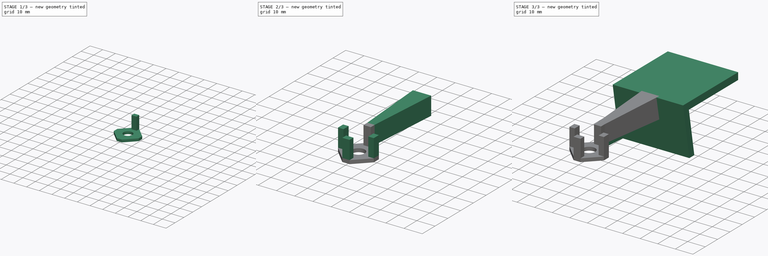
[diagram: build sequence overview — one tinted view per stage of 3, left to right]
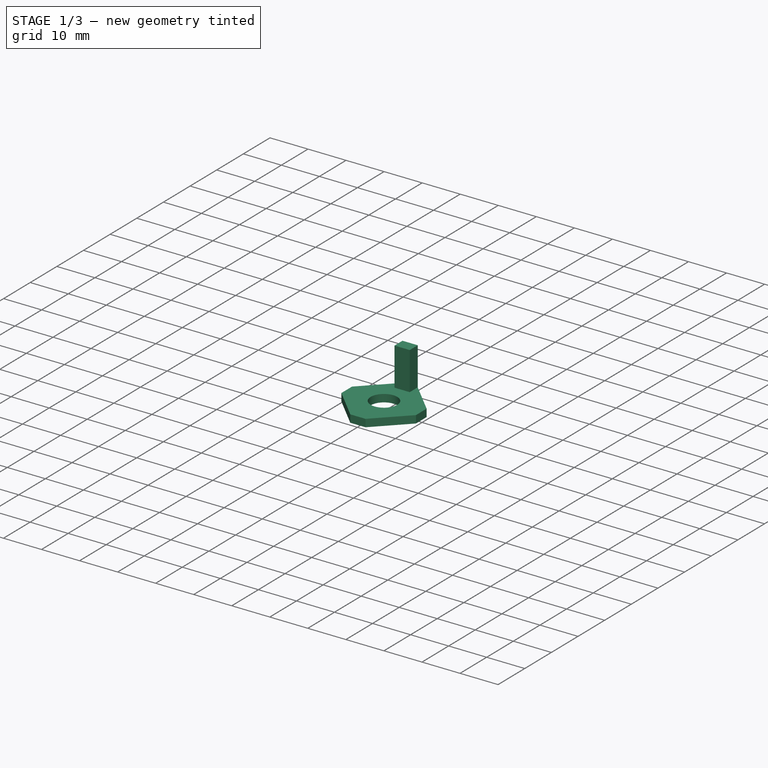
[diagram: stage 1 of 3 — iso view after this stage's code; geometry added in this stage tinted green]
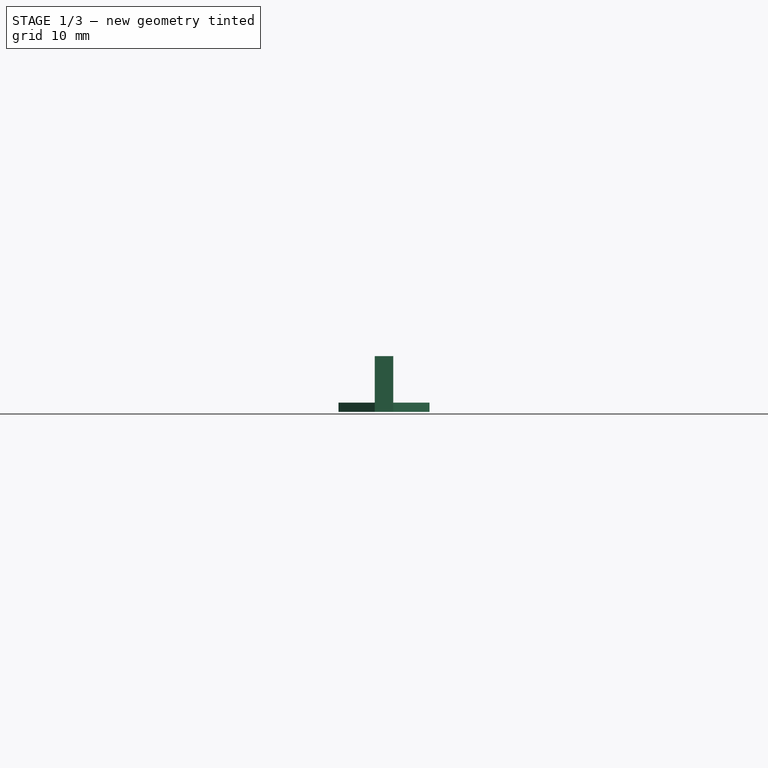
[diagram: stage 1 of 3 — front view after this stage's code; geometry added in this stage tinted green]
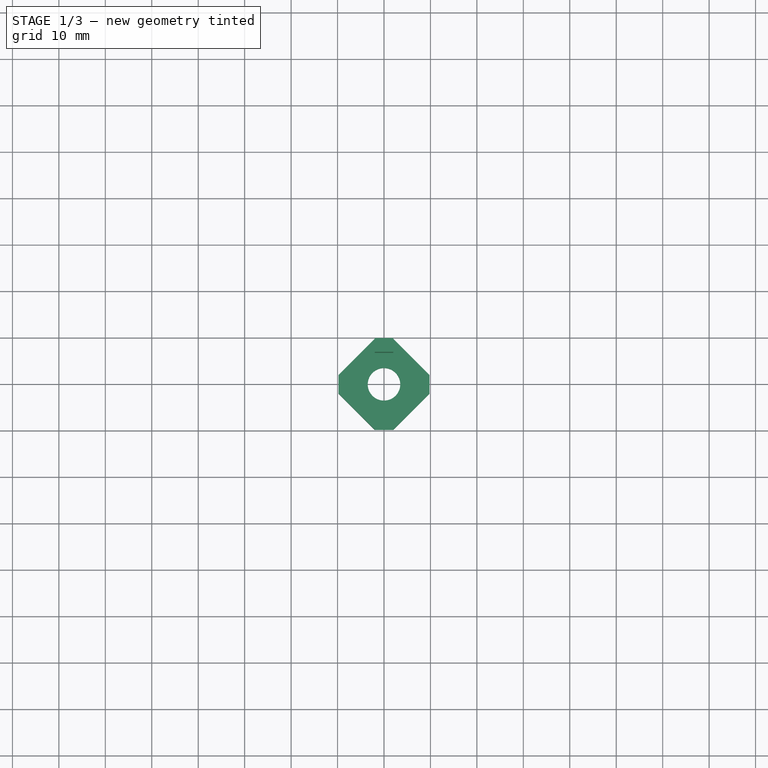
[diagram: stage 1 of 3 — top view after this stage's code; geometry added in this stage tinted green]
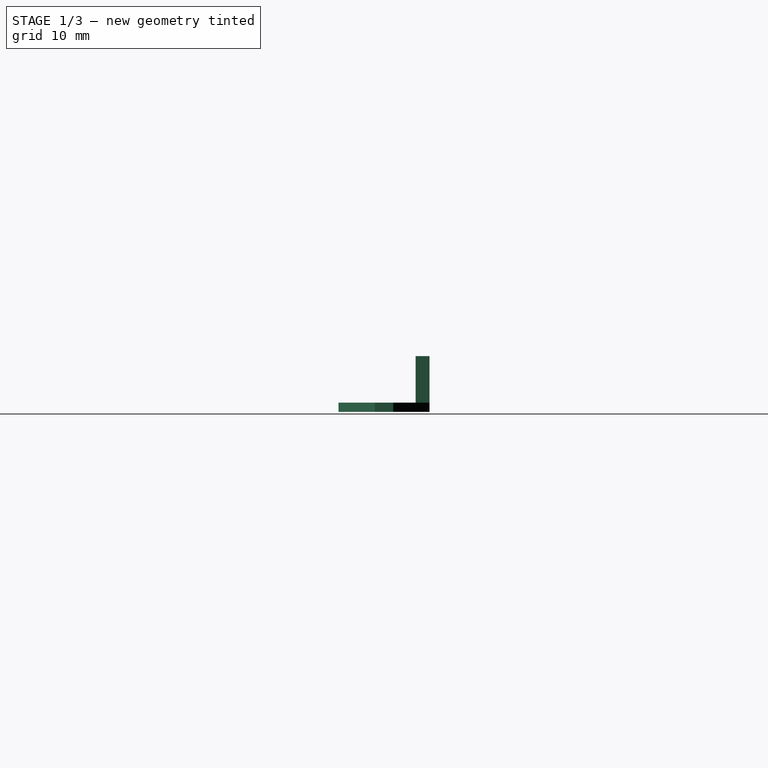
[diagram: stage 1 of 3 — right view after this stage's code; geometry added in this stage tinted green]
FCSTD DOCUMENT  (FreeCAD 0.21R33771 (Git))
Label: windowsill-for-panelmount-sma Rev D
License: All rights reserved
LicenseURL: https://en.wikipedia.org/wiki/All_rights_reserved
objects: PartDesign::Pad×5, Sketcher::SketchObject×4, PartDesign::PolarPattern×1, PartDesign::Body×1
note: 16 computed .brp shape members not serialized (recipe doc carries the construction recipe); baked Part::Feature solids carry a one-line shape summary decoded from their .brp

FEATURE [Sketcher::SketchObject] Sketch001  label="Fingers Profile"
  FullyConstrained = true
  MapMode = 5
  Support = -> [XY_Plane]
  sketch-geometry (6):
    g0: LineSegment StartX=-2 StartY=9.8 StartZ=0 EndX=2 EndY=9.8 EndZ=0
    g1: LineSegment StartX=2 StartY=9.8 StartZ=0 EndX=2 EndY=6.8 EndZ=0
    g2: LineSegment StartX=2 StartY=6.8 StartZ=0 EndX=-2 EndY=6.8 EndZ=0
    g3: LineSegment StartX=-2 StartY=6.8 StartZ=0 EndX=-2 EndY=9.8 EndZ=0
    g4: LineSegment StartX=-2 StartY=6.8 StartZ=0 EndX=4e-16 EndY=0 EndZ=0
    g5: LineSegment StartX=2 StartY=6.8 StartZ=0 EndX=4e-16 EndY=0 EndZ=0
  constraints (16):
    c: Coincident(g0,g1)
    c: Coincident(g1,g2)
    c: Coincident(g2,g3)
    c: Coincident(g3,g0)
    c: Horizontal(g0)
    c: Horizontal(g2)
    c: Vertical(g1)
    c: Vertical(g3)
    c: DistanceY(g1,g1) = 3
    c: DistanceX(g0,g0) = 4
    c: Coincident(g4,g2)
    c: Coincident(g4,g-1)
    c: Coincident(g5,g1)
    c: Coincident(g5,g4)
    c: Equal(g5,g4)
    c: DistanceY(g4,g1) = 6.8
FEATURE [Sketcher::SketchObject] Sketch  label="Base Profile"
  ExternalGeometry = -> [Sketch001]
  FullyConstrained = true
  MapMode = 5
  Support = -> [XY_Plane]
  sketch-geometry (13):
    g0: Circle CenterX=0 CenterY=0 CenterZ=0 NormalX=0 NormalY=0 NormalZ=1 AngleXU=0 Radius=3.5
    g1: LineSegment StartX=-9.8 StartY=2 StartZ=0 EndX=-9.8 EndY=-2 EndZ=0
    g2: LineSegment StartX=-2 StartY=-9.8 StartZ=0 EndX=2 EndY=-9.8 EndZ=0
    g3: LineSegment StartX=9.8 StartY=-2 StartZ=0 EndX=9.8 EndY=2 EndZ=0
    g4: LineSegment StartX=2 StartY=9.8 StartZ=0 EndX=-2 EndY=9.8 EndZ=0
    g5: LineSegment StartX=-2 StartY=9.8 StartZ=0 EndX=0 EndY=0 EndZ=0
    g6: LineSegment StartX=0 StartY=0 StartZ=0 EndX=2 EndY=-9.8 EndZ=0
    g7: LineSegment StartX=9.8 StartY=2 StartZ=0 EndX=0 EndY=0 EndZ=0
    g8: LineSegment StartX=0 StartY=0 StartZ=0 EndX=-9.8 EndY=-2 EndZ=0
    g9: LineSegment StartX=2 StartY=9.8 StartZ=0 EndX=9.8 EndY=2 EndZ=0
    g10: LineSegment StartX=9.8 StartY=-2 StartZ=0 EndX=2 EndY=-9.8 EndZ=0
    g11: LineSegment StartX=-9.8 StartY=-2 StartZ=0 EndX=-2 EndY=-9.8 EndZ=0
    g12: LineSegment StartX=-2 StartY=9.8 StartZ=0 EndX=-9.8 EndY=2 EndZ=0
  constraints (32):
    c: Coincident(g0,g-1)
    c: Diameter(g0) = 7
    c: Vertical(g1)
    c: Horizontal(g2)
    c: Vertical(g3)
    c: Horizontal(g3,g1)
    c: Horizontal(g3,g1)
    c: Vertical(g-3,g2)
    c: Vertical(g-3,g2)
    c: Equal(g4,g1)
    c: Coincident(g5,g0)
    c: Coincident(g6,g0)
    c: Coincident(g6,g2)
    c: Equal(g5,g6)
    c: Coincident(g7,g3)
    c: Coincident(g7,g0)
    c: Equal(g5,g7)
    c: Coincident(g4,g5)
    c: Coincident(g-3,g4)
    c: Coincident(g-3,g4)
    c: Angle(g7,g5) = 1.5708
    c: Coincident(g8,g0)
    c: Coincident(g8,g1)
    c: Equal(g8,g7)
    c: Coincident(g9,g4)
    c: Coincident(g9,g3)
    c: Coincident(g10,g3)
    c: Coincident(g10,g2)
    c: Coincident(g11,g1)
    c: Coincident(g11,g2)
    c: Coincident(g12,g4)
    c: Coincident(g12,g1)
FEATURE [PartDesign::Pad] Pad  label="Base"
  Direction = (0,0,1)
  Length = 2
  Length2 = 10
  Profile = -> Sketch
  ReferenceAxis = -> Sketch [N_Axis]
  Reversed = true
  Type = 0
FEATURE [PartDesign::Pad] Pad001  label="Fingers"
  BaseFeature = -> Pad
  Direction = (0,0,1)
  Length = 10
  Length2 = 10
  Profile = -> Sketch001
  ReferenceAxis = -> Sketch001 [N_Axis]
  Type = 0
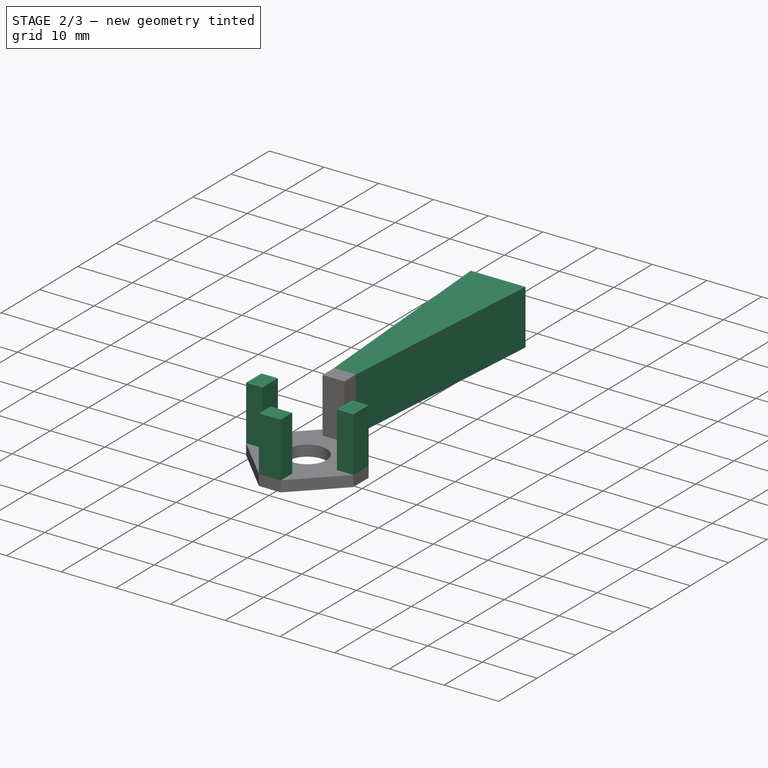
[diagram: stage 2 of 3 — iso view after this stage's code; geometry added in this stage tinted green]
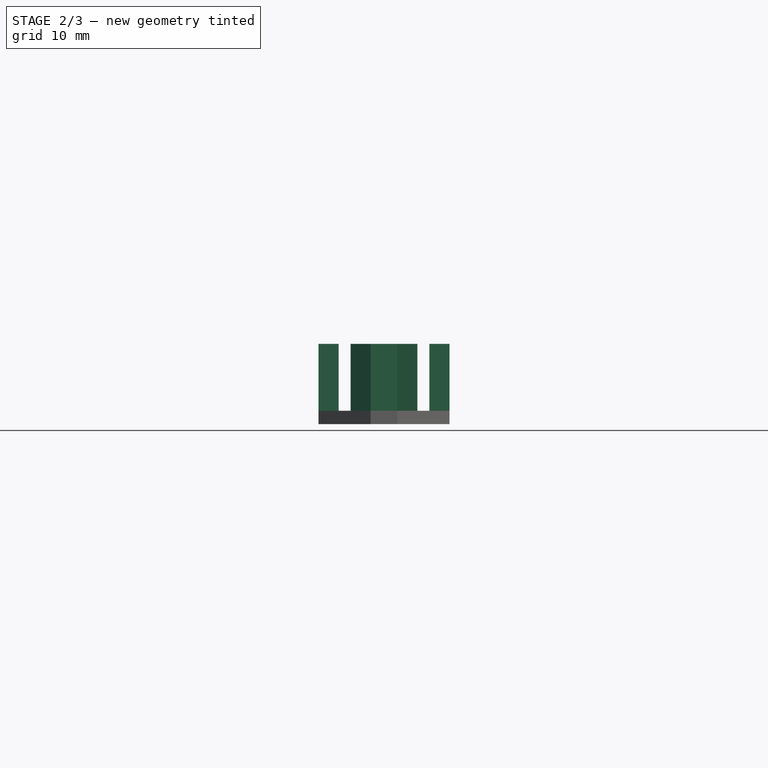
[diagram: stage 2 of 3 — front view after this stage's code; geometry added in this stage tinted green]
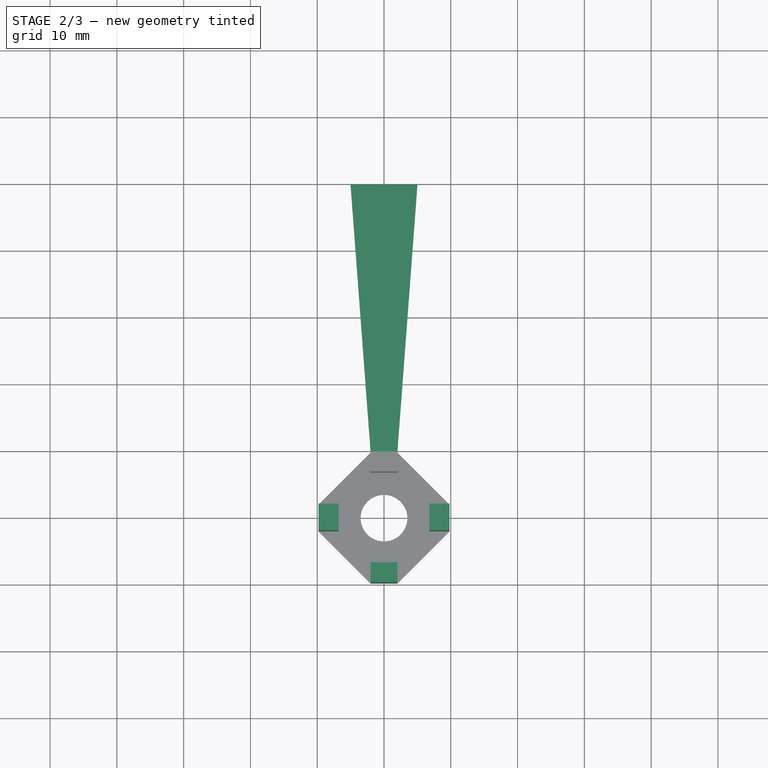
[diagram: stage 2 of 3 — top view after this stage's code; geometry added in this stage tinted green]
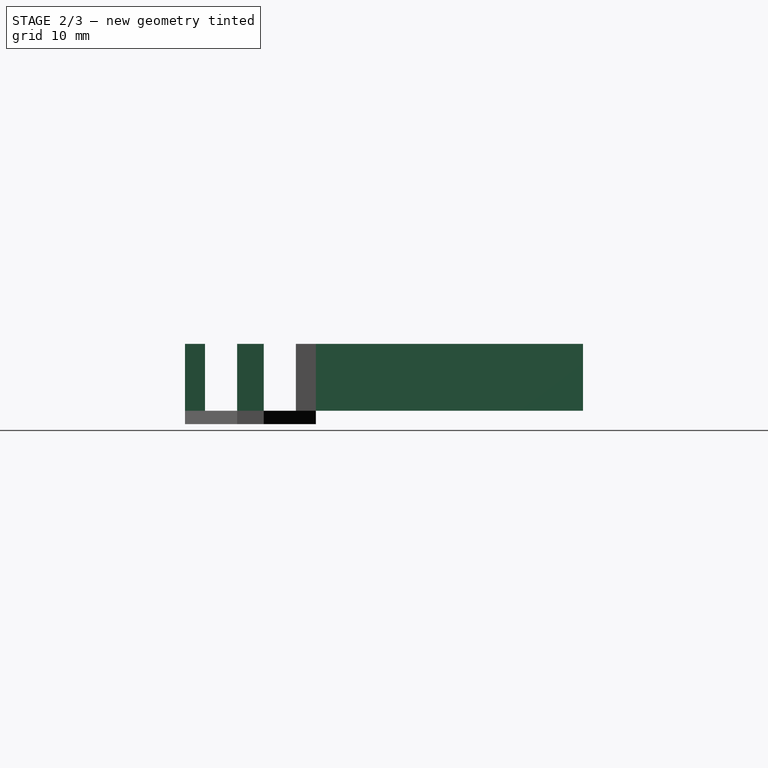
[diagram: stage 2 of 3 — right view after this stage's code; geometry added in this stage tinted green]
FEATURE [PartDesign::PolarPattern] PolarPattern
  Angle = 360
  Axis = -> Sketch001 [N_Axis]
  BaseFeature = -> Pad001
  Occurrences = 4
  Originals = -> [Pad001]
FEATURE [Sketcher::SketchObject] Sketch002  label="Antenna Extender Profile"
  ExternalGeometry = -> [Sketch001]
  FullyConstrained = true
  MapMode = 5
  Support = -> [XY_Plane]
  sketch-geometry (4):
    g0: LineSegment StartX=-2 StartY=9.8 StartZ=0 EndX=-5 EndY=49.8 EndZ=0
    g1: LineSegment StartX=-5 StartY=49.8 StartZ=0 EndX=5 EndY=49.8 EndZ=0
    g2: LineSegment StartX=5 StartY=49.8 StartZ=0 EndX=2 EndY=9.8 EndZ=0
    g3: LineSegment StartX=2 StartY=9.8 StartZ=0 EndX=-2 EndY=9.8 EndZ=0
  constraints (10):
    c: Coincident(g0,g-3)
    c: Coincident(g1,g0)
    c: Horizontal(g1)
    c: Coincident(g2,g1)
    c: Coincident(g2,g-3)
    c: Coincident(g3,g2)
    c: Coincident(g3,g0)
    c: Equal(g0,g2)
    c: DistanceX(g1,g1) = 10
    c: DistanceY(g0,g0) = 40
FEATURE [PartDesign::Pad] Pad002  label="Antenna Extender"
  BaseFeature = -> PolarPattern
  Direction = (0,0,1)
  Length = 10
  Length2 = 10
  Profile = -> Sketch002
  ReferenceAxis = -> Sketch002 [N_Axis]
  Type = 0
  expr: Length = <<Fingers>>.Length
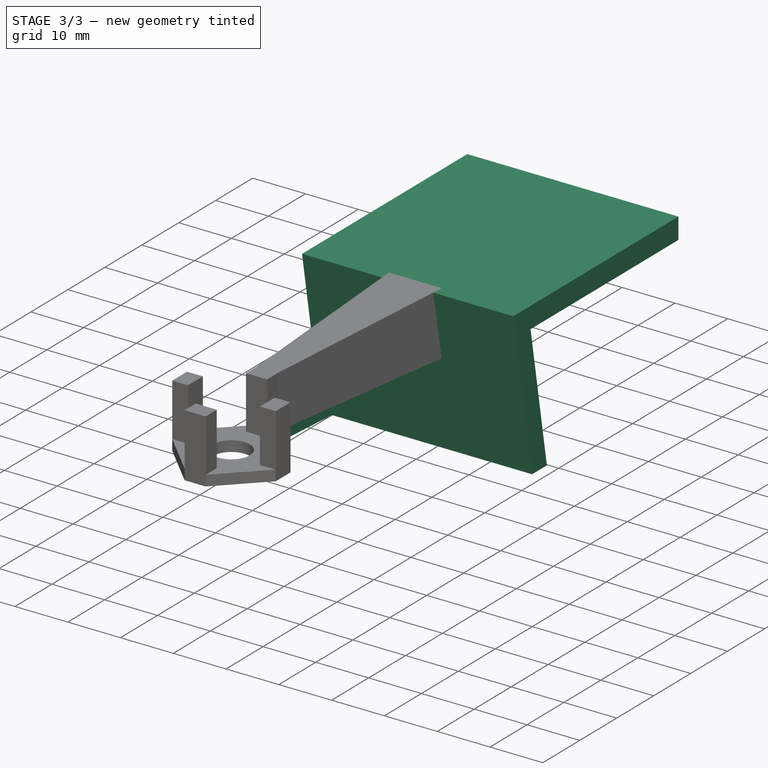
[diagram: stage 3 of 3 — iso view after this stage's code; geometry added in this stage tinted green]
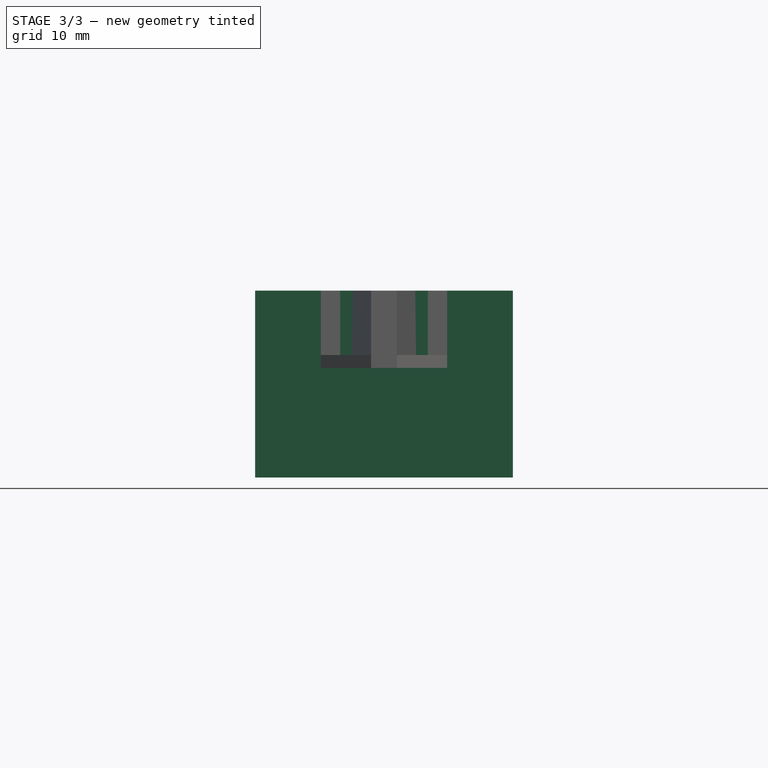
[diagram: stage 3 of 3 — front view after this stage's code; geometry added in this stage tinted green]
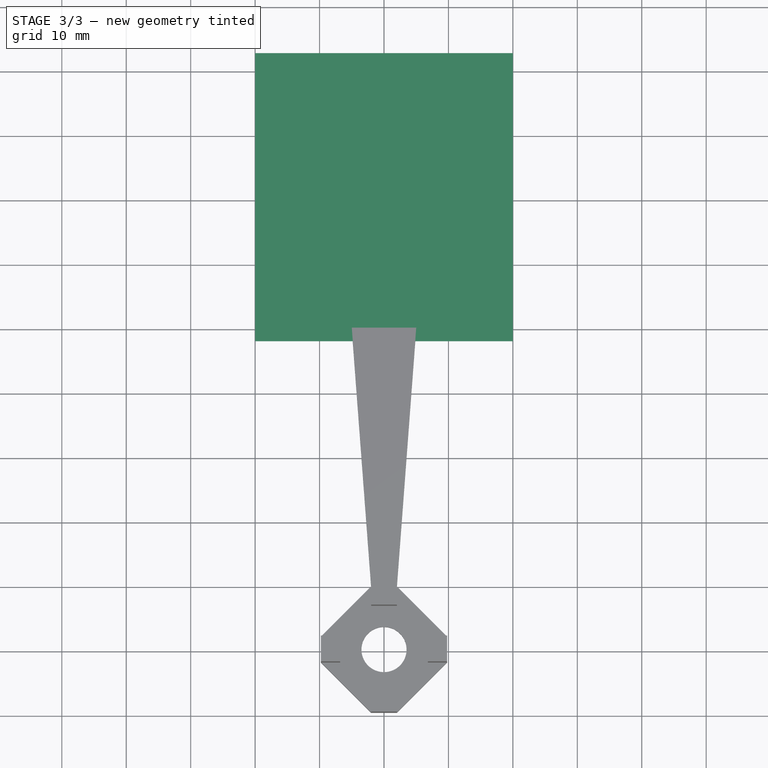
[diagram: stage 3 of 3 — top view after this stage's code; geometry added in this stage tinted green]
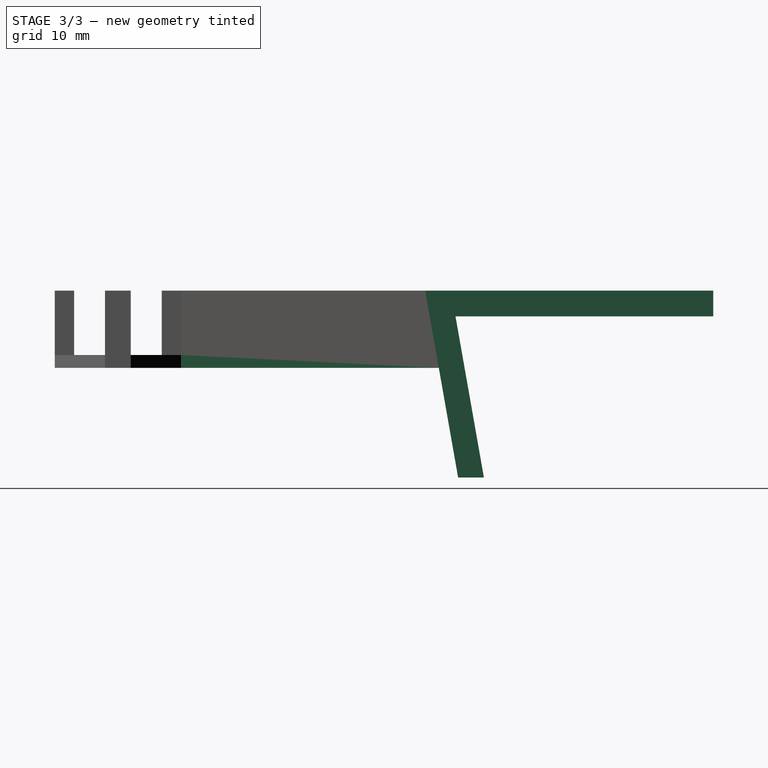
[diagram: stage 3 of 3 — right view after this stage's code; geometry added in this stage tinted green]
FEATURE [Sketcher::SketchObject] Sketch003  label="Windowsill Engager Profile"
  ExternalGeometry = -> [Sketch002]
  FullyConstrained = true
  MapMode = 5
  Placement = pos=(0,0,0) rot=(0.57735,0.57735,0.57735;2.0944rad)
  Support = -> [YZ_Plane]
  expr: Constraints[19] = <<Antenna Extender Bottom>>.Length
  expr: Constraints[20] = <<Fingers>>.Length
  sketch-geometry (7):
    g0: LineSegment StartX=47.6841 StartY=10 StartZ=0 EndX=92.3894 EndY=10 EndZ=0
    g1: LineSegment StartX=92.3894 StartY=10 StartZ=0 EndX=92.3894 EndY=6 EndZ=0
    g2: LineSegment StartX=92.3894 StartY=6 StartZ=0 EndX=52.3894 EndY=6 EndZ=0
    g3: LineSegment StartX=52.3894 StartY=6 StartZ=0 EndX=56.7976 EndY=-19 EndZ=0
    g4: LineSegment StartX=56.7976 StartY=-19 StartZ=0 EndX=52.7976 EndY=-19 EndZ=0
    g5: LineSegment StartX=52.7976 StartY=-19 StartZ=0 EndX=47.6841 EndY=10 EndZ=0
    g6: LineSegment StartX=49.8 StartY=1.38e-14 StartZ=0 EndX=49.8 EndY=-2 EndZ=0
  constraints (21):
    c: Horizontal(g0)
    c: Coincident(g1,g0)
    c: Vertical(g1)
    c: Horizontal(g2)
    c: Coincident(g3,g2)
    c: Horizontal(g4)
    c: Coincident(g5,g4)
    c: Coincident(g0,g5)
    c: Parallel(g3,g5)
    c: Coincident(g3,g4)
    c: Coincident(g2,g1)
    c: DistanceY(g1,g1) = 4
    c: Angle(g3,g2) = 1.39626
    c: DistanceX(g4,g4) = 4
    c: DistanceY(g3,g3) = 25
    c: DistanceX(g2,g2) = 40
    c: Vertical(g6)
    c: PointOnObject(g6,g5)
    c: Coincident(g6,g-3)
    c: DistanceY(g6,g6) = 2
    c: DistanceY(g-1,g0) = 10
FEATURE [PartDesign::Pad] Pad004  label="Antenna Extender Bottom"
  BaseFeature = -> Pad002
  Direction = (0,0,1)
  Length = 2
  Length2 = 10
  Profile = -> Sketch002
  ReferenceAxis = -> Sketch002 [N_Axis]
  Refine = true
  Reversed = true
  Type = 0
FEATURE [PartDesign::Pad] Pad005  label="Windowsill Engager"
  BaseFeature = -> Pad004
  Direction = (1,-2e-16,3e-16)
  Length = 40
  Length2 = 10
  Midplane = true
  Profile = -> Sketch003
  ReferenceAxis = -> Sketch003 [N_Axis]
  Type = 0
FEATURE [PartDesign::Body] Body
  Group = -> [Sketch,Pad,Sketch001,Pad001,PolarPattern,Sketch002,Pad002,Pad004,Sketch003,Pad005]
  Origin = -> Origin
  Tip = -> Pad005
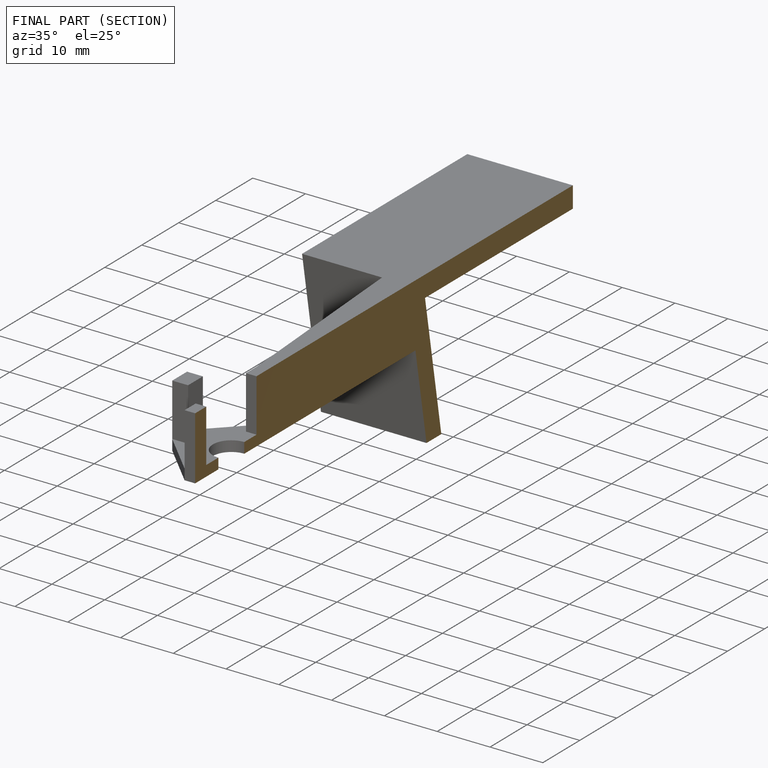
[diagram: finished part — half-section view (interior)]
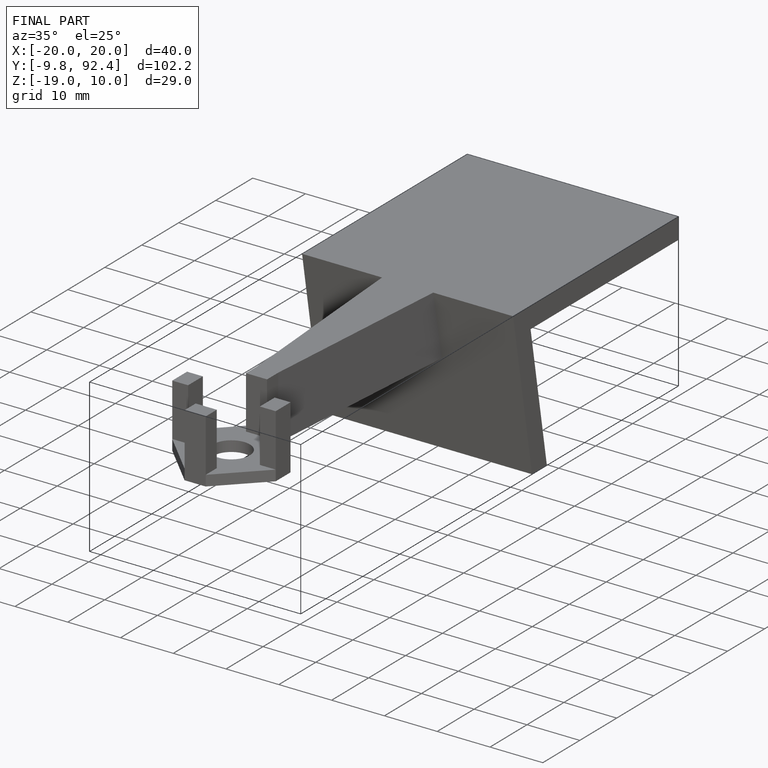
[diagram: finished part — iso view with bounding-box wireframe]
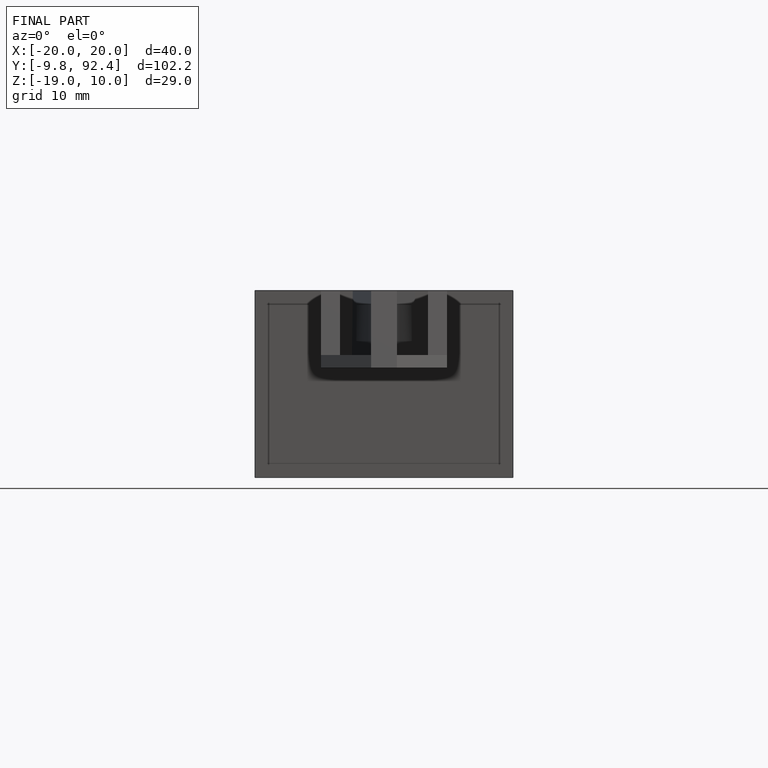
[diagram: finished part — front view with bounding-box wireframe]
